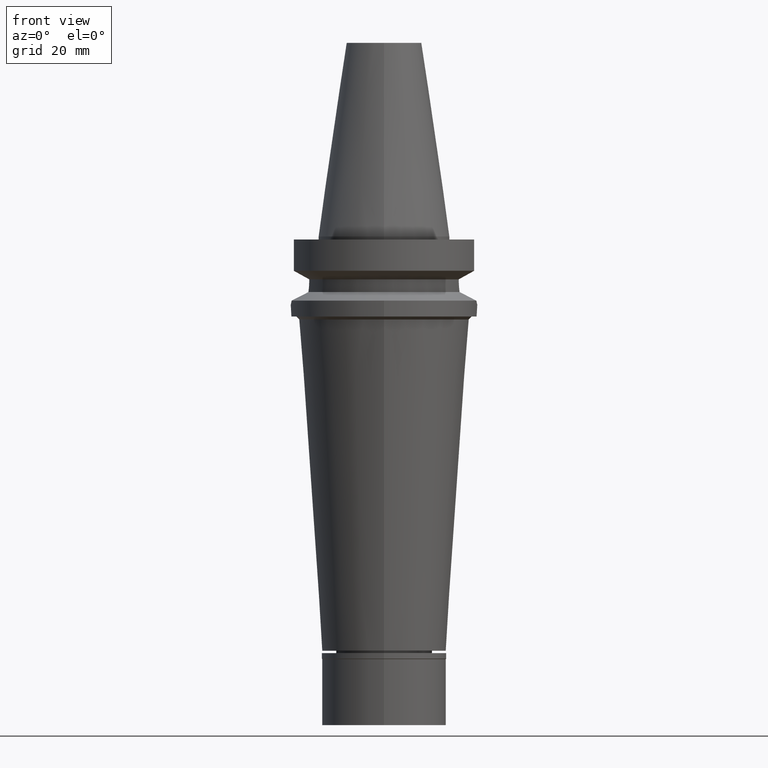
[diagram: clean part render]
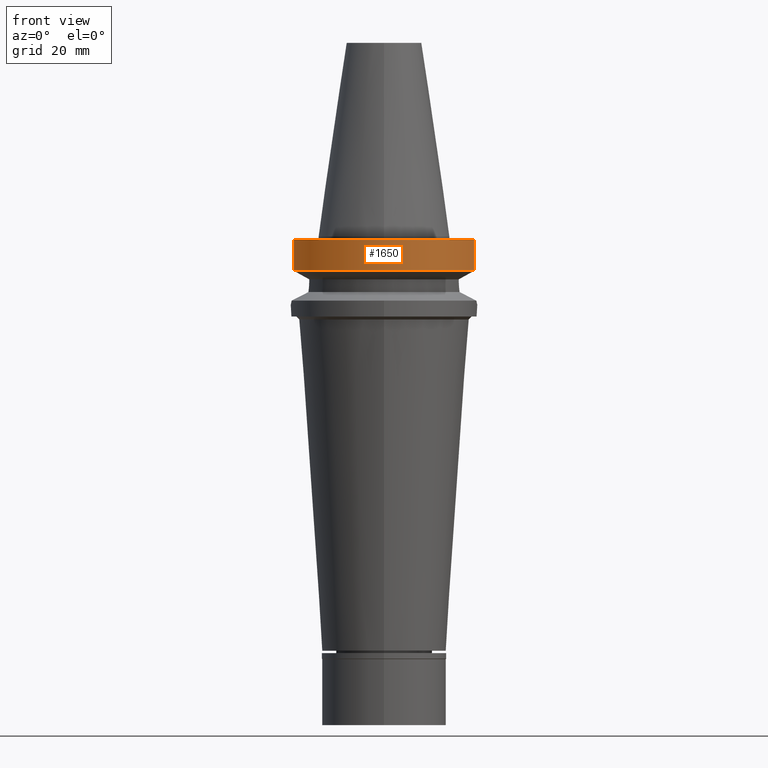
[diagram: same view with one face highlighted and labeled with its STEP entity id]
A machine part, front view. The second image highlights one B-rep face of the part: STEP entity #1650.
In plain terms, the highlighted cylindrical surface (partial cylindrical patch) has radius 31.5 mm, axis along (0, 0, -1).
Its self-contained STEP definition (entity closure, byte-faithful):
#27 = LINE ( 'NONE', #277, #2997 ) ;
#80 = DIRECTION ( 'NONE',  ( 0.0000000000000000000, -1.000000000000000000, 0.0000000000000000000 ) ) ;
#162 = AXIS2_PLACEMENT_3D ( 'NONE', #1511, #2478, #80 ) ;
#219 = CARTESIAN_POINT ( 'NONE',  ( 30.45402272279000044, -8.050000000000000711, -1.000000000000000000 ) ) ;
#277 = CARTESIAN_POINT ( 'NONE',  ( 30.45402272279000044, -8.050000000000000711, -1.000000000000000000 ) ) ;
#364 = DIRECTION ( 'NONE',  ( 0.0000000000000000000, 0.0000000000000000000, -1.000000000000000000 ) ) ;
#424 = CARTESIAN_POINT ( 'NONE',  ( 30.45402272279000044, -8.049999999999000622, -11.56550565266999975 ) ) ;
#534 = DIRECTION ( 'NONE',  ( 0.0000000000000000000, 0.0000000000000000000, -1.000000000000000000 ) ) ;
#617 = AXIS2_PLACEMENT_3D ( 'NONE', #1995, #534, #2514 ) ;
#967 = VERTEX_POINT ( 'NONE', #219 ) ;
#1014 = EDGE_CURVE ( 'NONE', #967, #1824, #27, .T. ) ;
#1126 = ORIENTED_EDGE ( 'NONE', *, *, #2506, .T. ) ;
#1131 = CIRCLE ( 'NONE', #162, 31.50000000000000000 ) ;
#1171 = EDGE_LOOP ( 'NONE', ( #2298, #2769, #1965, #1126 ) ) ;
#1249 = DIRECTION ( 'NONE',  ( -1.036649194657017645E-07, -3.921750933745068257E-07, -0.9999999999999177325 ) ) ;
#1298 = EDGE_CURVE ( 'NONE', #2077, #2144, #2321, .T. ) ;
#1511 = CARTESIAN_POINT ( 'NONE',  ( 0.0000000000000000000, 1.065333950388000029E-14, -11.56550565266999975 ) ) ;
#1567 = DIRECTION ( 'NONE',  ( 0.0000000000000000000, -1.000000000000000000, 0.0000000000000000000 ) ) ;
#1597 = CARTESIAN_POINT ( 'NONE',  ( -30.45402291358000113, -8.049999278195999253, -11.56551215380000031 ) ) ;
#1650 = ADVANCED_FACE ( 'NONE', ( #1796 ), #2020, .T. ) ;
#1774 = VECTOR ( 'NONE', #2335, 1000.000000000000114 ) ;
#1796 = FACE_OUTER_BOUND ( 'NONE', #1171, .T. ) ;
#1824 = VERTEX_POINT ( 'NONE', #424 ) ;
#1965 = ORIENTED_EDGE ( 'NONE', *, *, #1014, .F. ) ;
#1995 = CARTESIAN_POINT ( 'NONE',  ( 0.0000000000000000000, 2.162052691555000099E-14, 76.54500000000000171 ) ) ;
#2020 = CYLINDRICAL_SURFACE ( 'NONE', #617, 31.50000000000000000 ) ;
#2042 = AXIS2_PLACEMENT_3D ( 'NONE', #2760, #364, #1567 ) ;
#2077 = VERTEX_POINT ( 'NONE', #3125 ) ;
#2144 = VERTEX_POINT ( 'NONE', #2453 ) ;
#2161 = EDGE_CURVE ( 'NONE', #2077, #1824, #1131, .T. ) ;
#2298 = ORIENTED_EDGE ( 'NONE', *, *, #1298, .F. ) ;
#2321 = LINE ( 'NONE', #1597, #1774 ) ;
#2335 = DIRECTION ( 'NONE',  ( 1.805835241063990690E-08, -6.831694115686962827E-08, 0.9999999999999974465 ) ) ;
#2453 = CARTESIAN_POINT ( 'NONE',  ( -30.45402272279000044, -8.050000000000000711, -1.000000000000000000 ) ) ;
#2478 = DIRECTION ( 'NONE',  ( 0.0000000000000000000, 0.0000000000000000000, 1.000000000000000000 ) ) ;
#2506 = EDGE_CURVE ( 'NONE', #967, #2144, #2742, .T. ) ;
#2514 = DIRECTION ( 'NONE',  ( 0.0000000000000000000, -1.000000000000000000, 0.0000000000000000000 ) ) ;
#2742 = CIRCLE ( 'NONE', #2042, 31.50000000000000000 ) ;
#2760 = CARTESIAN_POINT ( 'NONE',  ( 0.0000000000000000000, 2.162052691555000099E-14, -1.000000000000000000 ) ) ;
#2769 = ORIENTED_EDGE ( 'NONE', *, *, #2161, .T. ) ;
#2997 = VECTOR ( 'NONE', #1249, 1000.000000000000114 ) ;
#3125 = CARTESIAN_POINT ( 'NONE',  ( -30.45402291358000113, -8.049999278195999253, -11.56551215380000031 ) ) ;